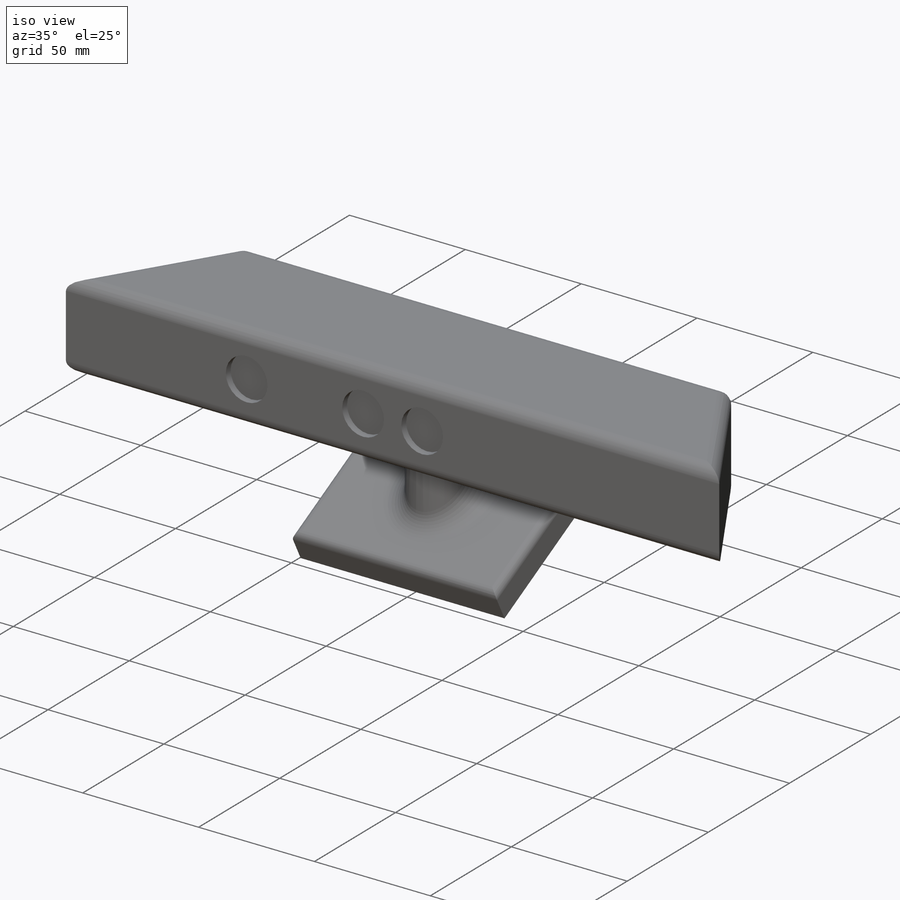
[diagram: iso view]
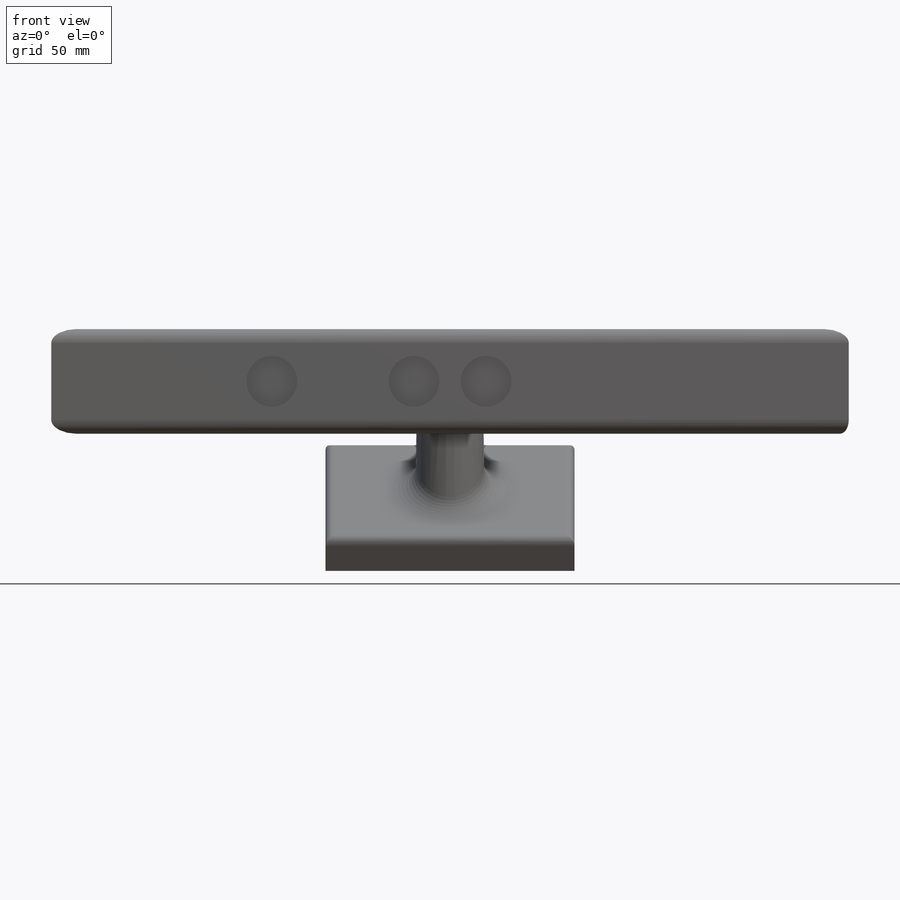
[diagram: front view]
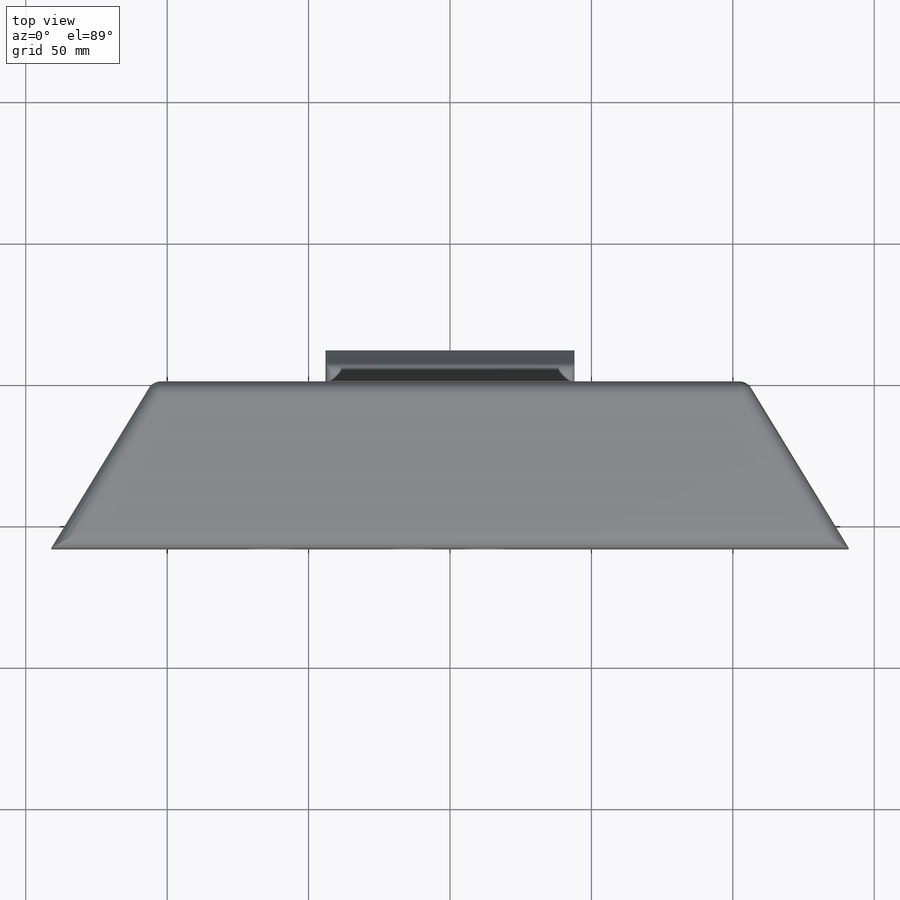
[diagram: top view]
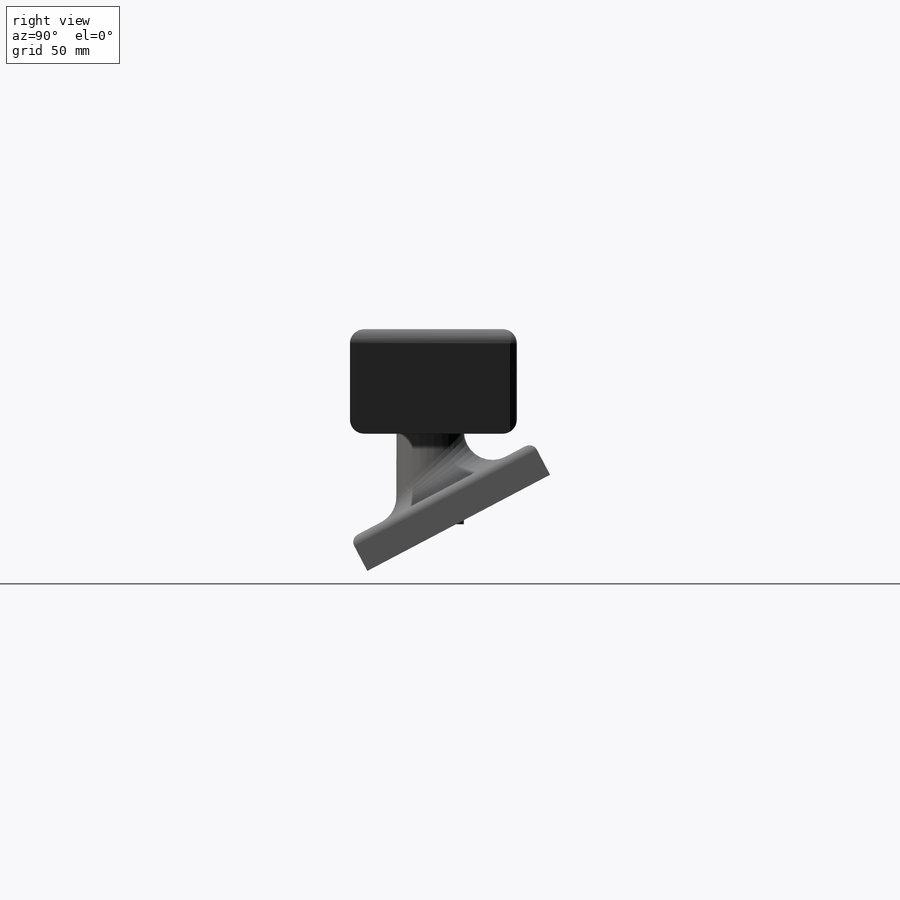
[diagram: right view]
SOLIDWORKS PART (.sldprt)
format: sldprt  version: not decoded by parser v0  size: 264,704 bytes
history: native  units: mm
features: sketch x5, extrude x3, fillet x3, cut_extrude x2, material x1 + 1 further entry (+13 scaffold rows collapsed)
feature tree (28):
  scaffold x13  (default folders/planes/origin — collapsed)
  material  "Material <not specified>"
  "Annotations"  RD1=46.060635mm RD3=282mm RD4=37mm
  sketch  "Sketch1"  dims[D1=282.0mm D2=37.0mm]
  extrude  "Extrude1"  Depth=59mm
  sketch  "Sketch2"  dims[c1.D1=~10.385807mm c1.D2=18.0mm c1.D3=18.0mm c1.D4=18.0mm c2.D1=78.0mm c2.D5=12.75mm c2.D6=12.75mm]
  cut_extrude  "Extrude2"  Depth=3mm
  sketch  "Sketch6"  dims[D1=36.0mm]
  cut_extrude  "Extrude5"  [1 undecoded]
  fillet  "Fillet3"  Radius=5mm
  sketch  "Sketch3"
  extrude  "Extrude3"  Depth=32mm
  sketch  "Sketch5"  dims[c1.D1=73.0mm c1.D2=13.0mm c1.D3=37.0mm c1.D4=0.1mm c1.D5=71.0mm c2.D5=~56.773841deg c2.D4=3.0mm c3.D5=0.1mm c3.D3=34.0mm]
  extrude  "Extrude4"  Depth=44mm
  fillet  "Fillet1"  Radius=10mm
  fillet  "Fillet2"  Radius=3mm
decode coverage: 11 of 13 modeling features carry decoded parameters; 1 rows unclassified (native names shown)
note: ~ marks probable driven/reference dimensions
note: 1 parameter value undecoded
note: suppression state not decoded; provenance and decode notes live in map.json
